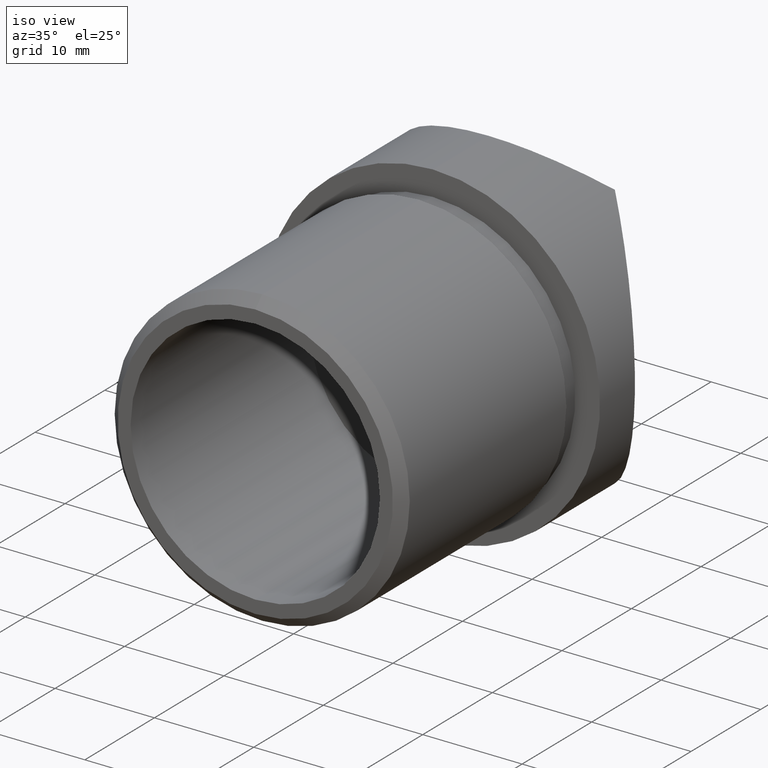
[diagram: clean part render]
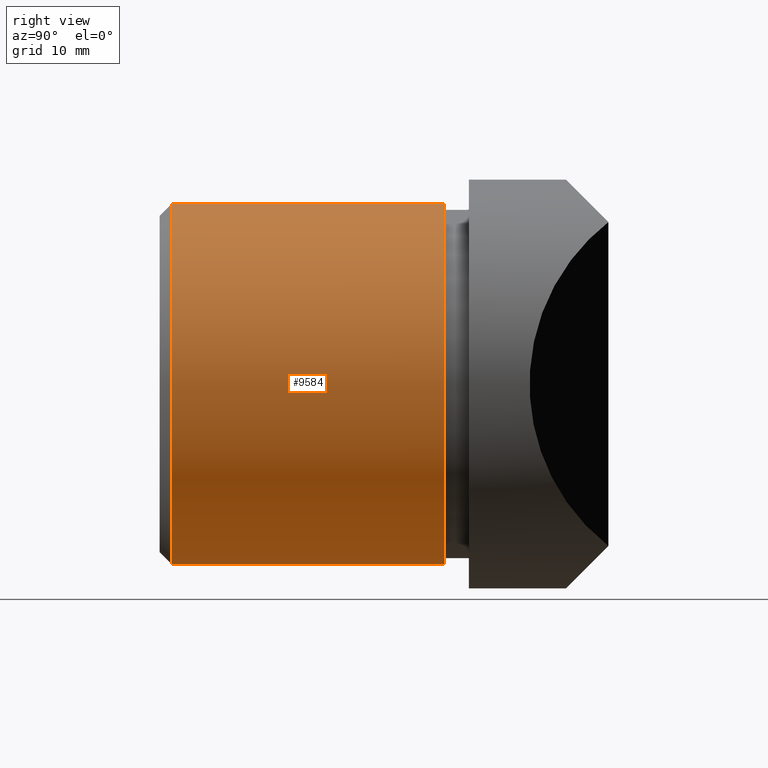
[diagram: tour spotlight — one face highlighted and labeled with its STEP entity id]
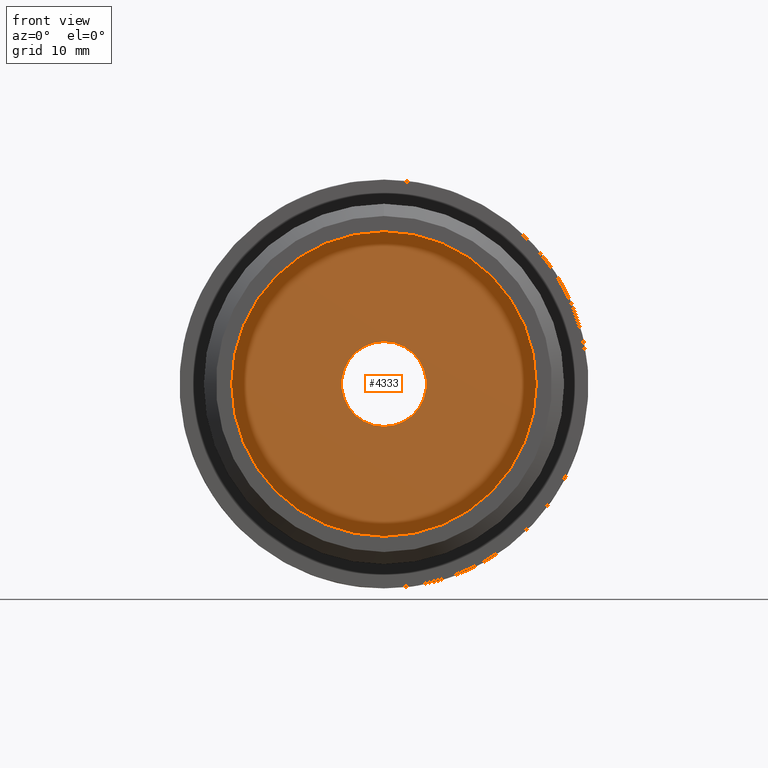
[diagram: tour spotlight — one face highlighted and labeled with its STEP entity id]
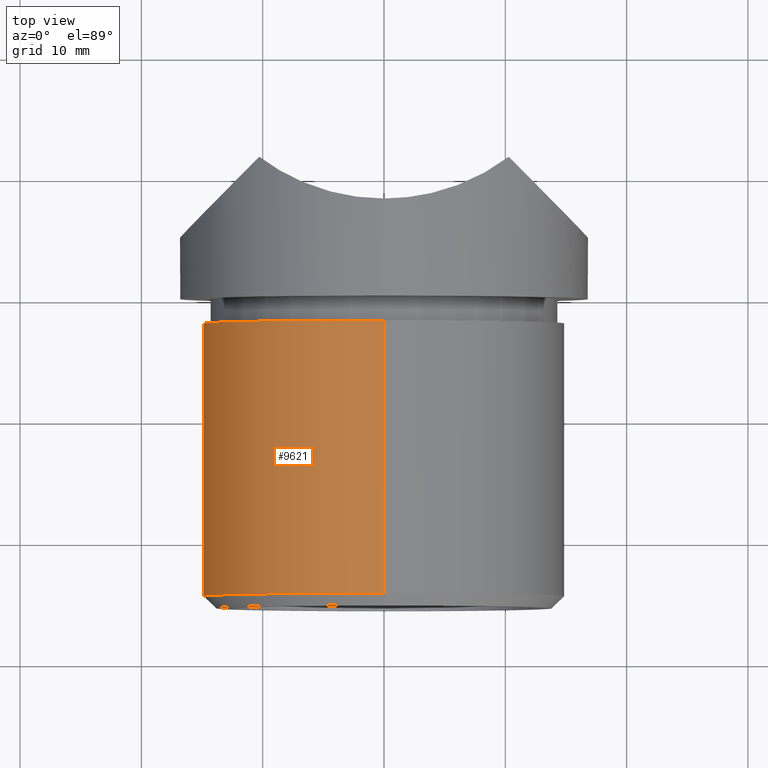
[diagram: tour spotlight — one face highlighted and labeled with its STEP entity id]
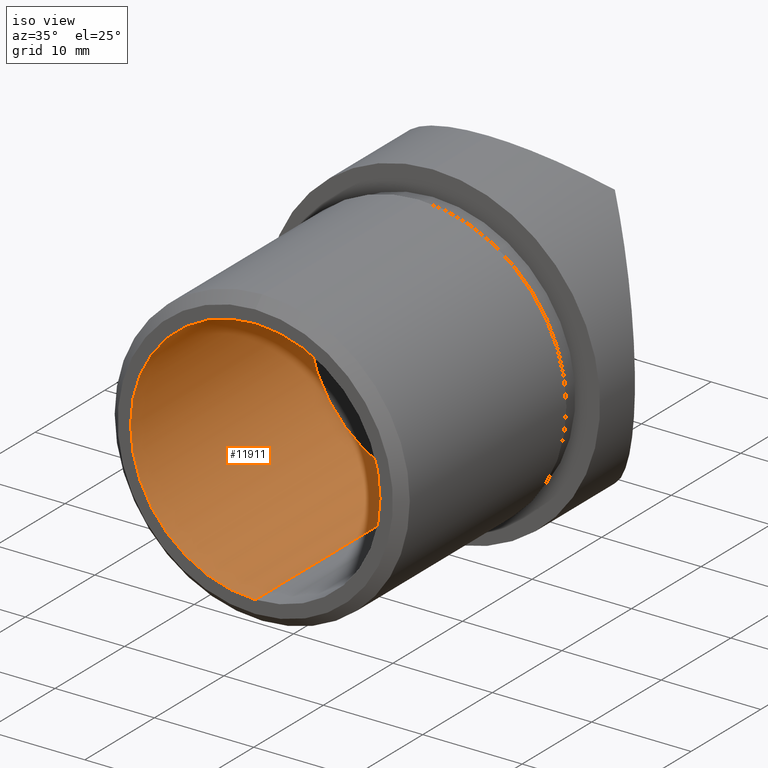
[diagram: tour spotlight — one face highlighted and labeled with its STEP entity id]
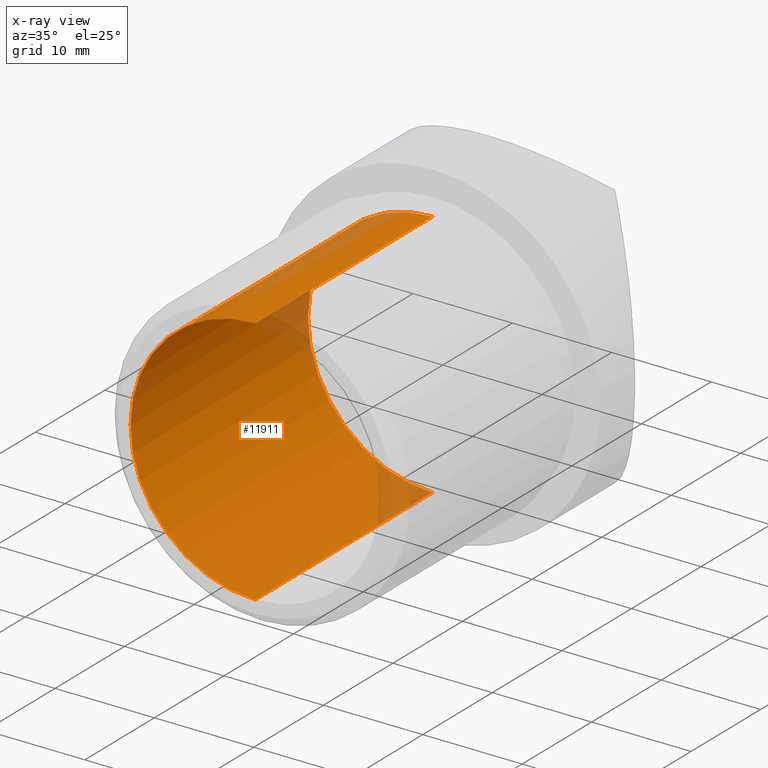
[diagram: x-ray of the same camera — body ghosted, this tour face saturated]
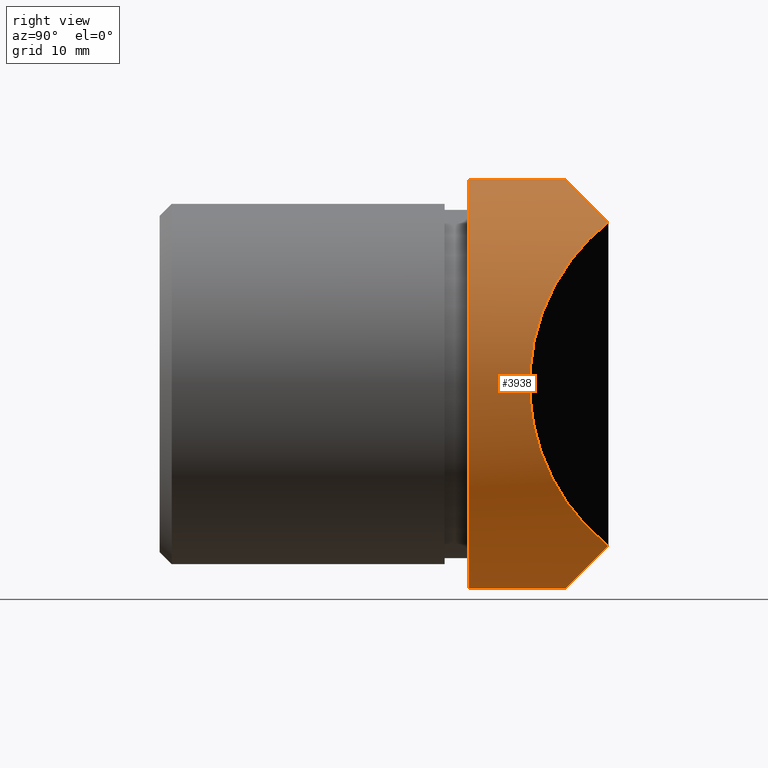
[diagram: tour spotlight — one face highlighted and labeled with its STEP entity id]
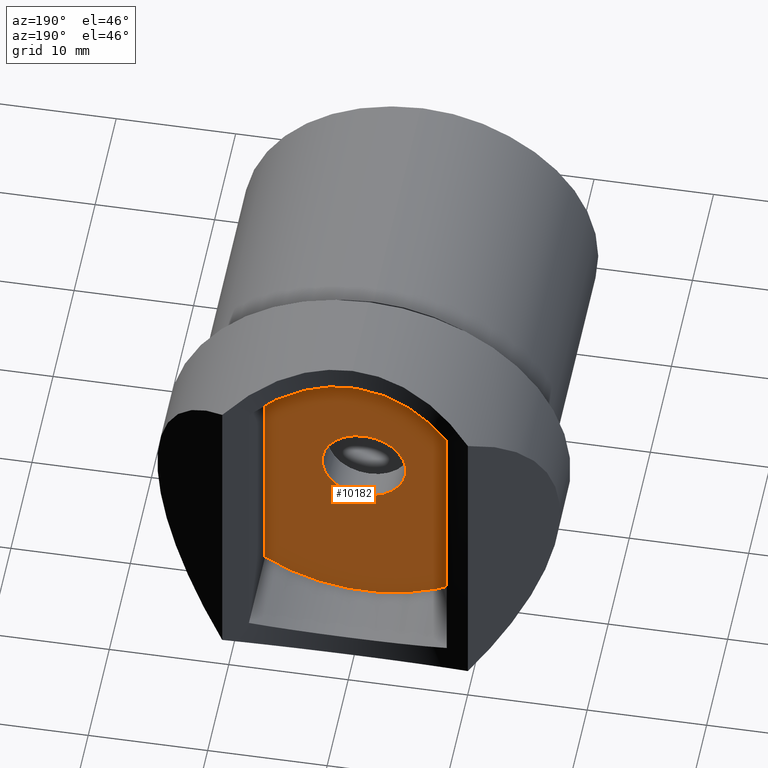
[diagram: tour spotlight — one face highlighted and labeled with its STEP entity id]
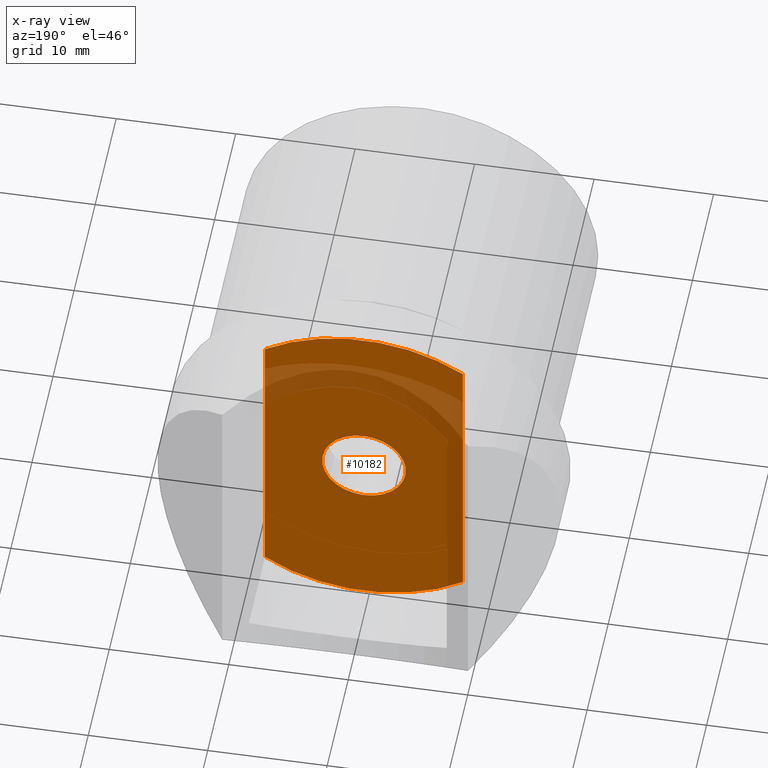
[diagram: x-ray of the same camera — body ghosted, this tour face saturated]
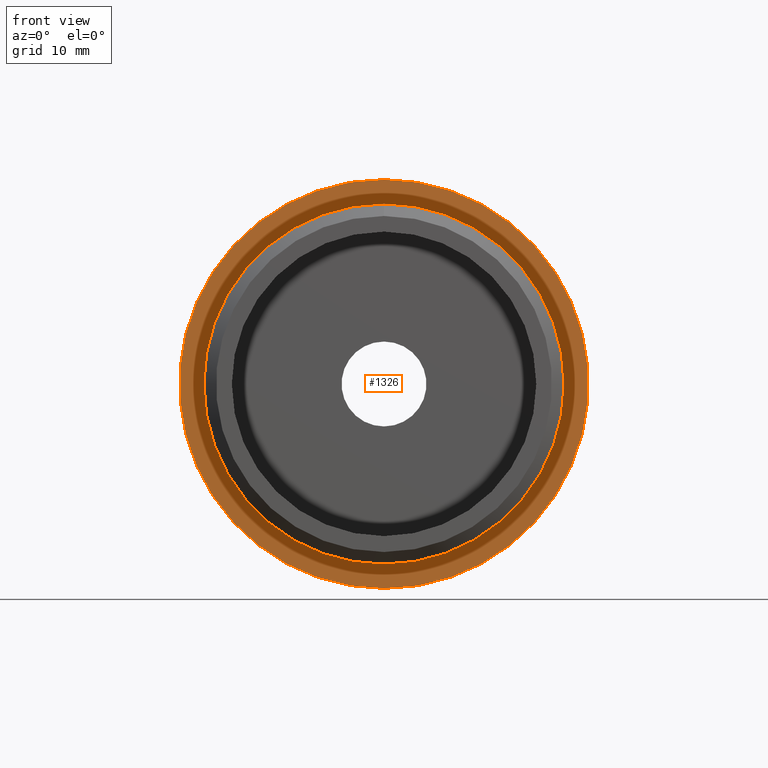
[diagram: tour spotlight — one face highlighted and labeled with its STEP entity id]
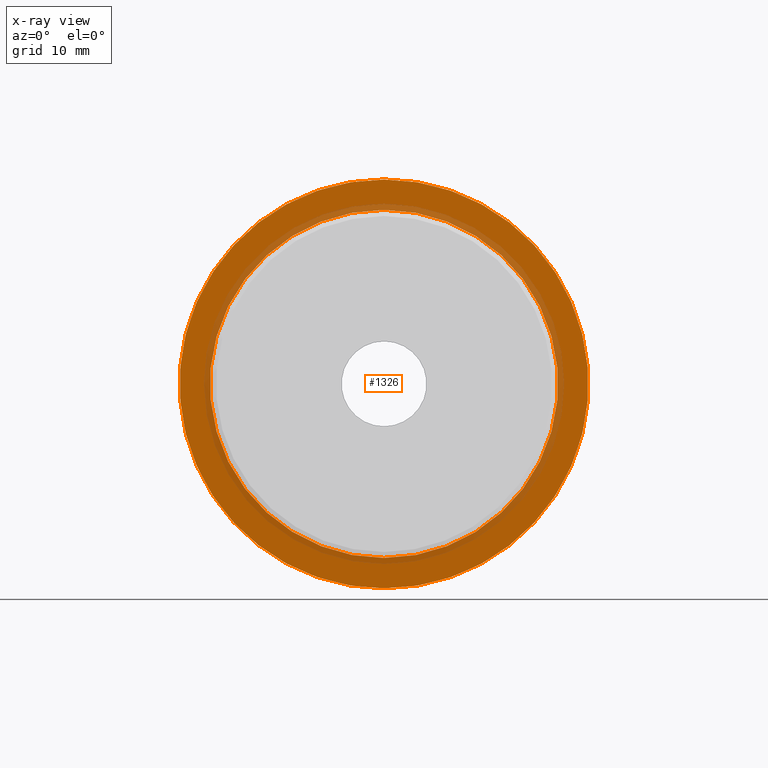
[diagram: x-ray of the same camera — body ghosted, this tour face saturated]
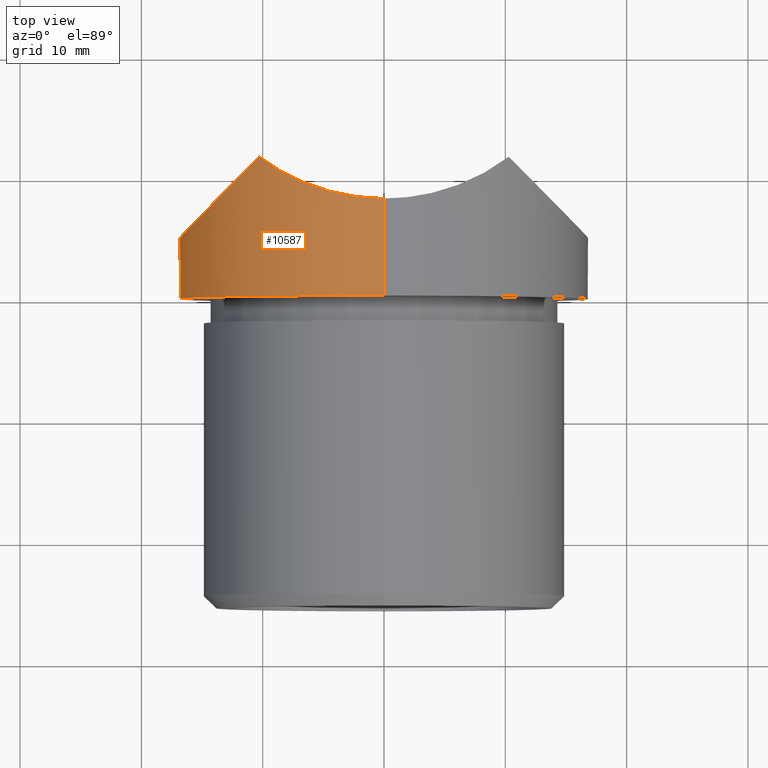
[diagram: tour spotlight — one face highlighted and labeled with its STEP entity id]
A machine part: a face-by-face anatomy tour. The part has 237 B-rep faces; the first image is the clean iso view, then the 8 largest visible faces are spotlighted one at a time (largest first), each with its STEP entity span.

Face 1 — right view, entity #9584. In plain terms, the highlighted cylindrical surface (partial cylindrical patch) has radius 14.85 mm, axis along (-0, 1, 0).
Definition (entity closure, byte-faithful):
#755 = LINE ( 'NONE', #2921, #3417 ) ;
#798 = CARTESIAN_POINT ( 'NONE',  ( 0.0000000000000000000, -25.50000000000000400, 14.85000000000000100 ) ) ;
#1133 = CARTESIAN_POINT ( 'NONE',  ( 1.818600496733819900E-015, -2.000000000000000000, -14.85000000000000100 ) ) ;
#1650 = FACE_OUTER_BOUND ( 'NONE', #2201, .T. ) ;
#1958 = VECTOR ( 'NONE', #10857, 1000.000000000000000 ) ;
#2189 = CARTESIAN_POINT ( 'NONE',  ( 0.0000000000000000000, -24.49999999999998600, 0.0000000000000000000 ) ) ;
#2201 = EDGE_LOOP ( 'NONE', ( #8445, #7369, #6015, #7601 ) ) ;
#2852 = AXIS2_PLACEMENT_3D ( 'NONE', #2189, #9168, #3183 ) ;
#2921 = CARTESIAN_POINT ( 'NONE',  ( 1.818600496733819900E-015, -25.50000000000000400, -14.85000000000000100 ) ) ;
#3183 = DIRECTION ( 'NONE',  ( 0.0000000000000000000, 0.0000000000000000000, -1.000000000000000000 ) ) ;
#3275 = CARTESIAN_POINT ( 'NONE',  ( 0.0000000000000000000, -2.000000000000000000, 0.0000000000000000000 ) ) ;
#3292 = DIRECTION ( 'NONE',  ( -0.0000000000000000000, 1.000000000000000000, 0.0000000000000000000 ) ) ;
#3417 = VECTOR ( 'NONE', #12917, 1000.000000000000000 ) ;
#3426 = EDGE_CURVE ( 'NONE', #8214, #5075, #755, .T. ) ;
#3995 = CYLINDRICAL_SURFACE ( 'NONE', #10809, 14.85000000000000100 ) ;
#4269 = DIRECTION ( 'NONE',  ( 0.0000000000000000000, 0.0000000000000000000, -1.000000000000000000 ) ) ;
#4647 = EDGE_CURVE ( 'NONE', #11382, #8214, #7434, .T. ) ;
#5075 = VERTEX_POINT ( 'NONE', #1133 ) ;
#5277 = DIRECTION ( 'NONE',  ( 0.0000000000000000000, 0.0000000000000000000, 1.000000000000000000 ) ) ;
#5883 = VERTEX_POINT ( 'NONE', #11936 ) ;
#6015 = ORIENTED_EDGE ( 'NONE', *, *, #8642, .T. ) ;
#7369 = ORIENTED_EDGE ( 'NONE', *, *, #3426, .T. ) ;
#7434 = CIRCLE ( 'NONE', #2852, 14.85000000000000100 ) ;
#7601 = ORIENTED_EDGE ( 'NONE', *, *, #9471, .F. ) ;
#8214 = VERTEX_POINT ( 'NONE', #11736 ) ;
#8445 = ORIENTED_EDGE ( 'NONE', *, *, #4647, .T. ) ;
#8642 = EDGE_CURVE ( 'NONE', #5075, #5883, #10435, .T. ) ;
#9168 = DIRECTION ( 'NONE',  ( 0.0000000000000000000, 1.000000000000000000, 0.0000000000000000000 ) ) ;
#9471 = EDGE_CURVE ( 'NONE', #11382, #5883, #12558, .T. ) ;
#9584 = ADVANCED_FACE ( 'NONE', ( #1650 ), #3995, .T. ) ;
#9905 = CARTESIAN_POINT ( 'NONE',  ( 0.0000000000000000000, -24.49999999999998600, 14.85000000000000100 ) ) ;
#10245 = DIRECTION ( 'NONE',  ( 0.0000000000000000000, -1.000000000000000000, 0.0000000000000000000 ) ) ;
#10435 = CIRCLE ( 'NONE', #11988, 14.85000000000000100 ) ;
#10809 = AXIS2_PLACEMENT_3D ( 'NONE', #11246, #3292, #5277 ) ;
#10857 = DIRECTION ( 'NONE',  ( -0.0000000000000000000, 1.000000000000000000, 0.0000000000000000000 ) ) ;
#11246 = CARTESIAN_POINT ( 'NONE',  ( 0.0000000000000000000, -25.50000000000000400, 0.0000000000000000000 ) ) ;
#11382 = VERTEX_POINT ( 'NONE', #9905 ) ;
#11736 = CARTESIAN_POINT ( 'NONE',  ( 1.818600496733819900E-015, -24.49999999999998600, -14.85000000000000100 ) ) ;
#11936 = CARTESIAN_POINT ( 'NONE',  ( 0.0000000000000000000, -2.000000000000000000, 14.85000000000000100 ) ) ;
#11988 = AXIS2_PLACEMENT_3D ( 'NONE', #3275, #10245, #4269 ) ;
#12558 = LINE ( 'NONE', #798, #1958 ) ;
#12917 = DIRECTION ( 'NONE',  ( -0.0000000000000000000, 1.000000000000000000, 0.0000000000000000000 ) ) ;

Face 2 — front view, entity #4333. In plain terms, the highlighted planar face has unit normal (0, 1, 0).
Definition (entity closure, byte-faithful):
#432 = EDGE_CURVE ( 'NONE', #1520, #3804, #10884, .T. ) ;
#592 = CIRCLE ( 'NONE', #7047, 3.500000000000000000 ) ;
#604 = DIRECTION ( 'NONE',  ( 0.0000000000000000000, -0.0000000000000000000, 1.000000000000000000 ) ) ;
#621 = DIRECTION ( 'NONE',  ( 0.0000000000000000000, 1.000000000000000000, 0.0000000000000000000 ) ) ;
#649 = PLANE ( 'NONE',  #12450 ) ;
#1150 = CARTESIAN_POINT ( 'NONE',  ( 0.0000000000000000000, 0.0000000000000000000, 0.0000000000000000000 ) ) ;
#1203 = VERTEX_POINT ( 'NONE', #6114 ) ;
#1520 = VERTEX_POINT ( 'NONE', #8709 ) ;
#1796 = EDGE_CURVE ( 'NONE', #11105, #1203, #8065, .T. ) ;
#2078 = DIRECTION ( 'NONE',  ( 0.0000000000000000000, -1.000000000000000000, 0.0000000000000000000 ) ) ;
#3512 = ORIENTED_EDGE ( 'NONE', *, *, #1796, .T. ) ;
#3804 = VERTEX_POINT ( 'NONE', #8096 ) ;
#3904 = DIRECTION ( 'NONE',  ( 0.0000000000000000000, 0.0000000000000000000, -1.000000000000000000 ) ) ;
#4333 = ADVANCED_FACE ( 'NONE', ( #9340, #4347 ), #649, .F. ) ;
#4347 = FACE_OUTER_BOUND ( 'NONE', #8064, .T. ) ;
#4369 = AXIS2_PLACEMENT_3D ( 'NONE', #11791, #5800, #12798 ) ;
#5225 = ORIENTED_EDGE ( 'NONE', *, *, #9092, .F. ) ;
#5800 = DIRECTION ( 'NONE',  ( 0.0000000000000000000, -1.000000000000000000, 0.0000000000000000000 ) ) ;
#6114 = CARTESIAN_POINT ( 'NONE',  ( 1.536931732929928400E-015, 0.0000000000000000000, -12.55000000000000100 ) ) ;
#6270 = EDGE_CURVE ( 'NONE', #1203, #11105, #10008, .T. ) ;
#7047 = AXIS2_PLACEMENT_3D ( 'NONE', #8046, #2078, #9064 ) ;
#7336 = DIRECTION ( 'NONE',  ( 0.0000000000000000000, -1.000000000000000000, 0.0000000000000000000 ) ) ;
#7505 = EDGE_LOOP ( 'NONE', ( #5225, #10526 ) ) ;
#7819 = DIRECTION ( 'NONE',  ( 0.0000000000000000000, 0.0000000000000000000, -1.000000000000000000 ) ) ;
#8046 = CARTESIAN_POINT ( 'NONE',  ( 0.0000000000000000000, 0.0000000000000000000, 0.0000000000000000000 ) ) ;
#8064 = EDGE_LOOP ( 'NONE', ( #3512, #11783 ) ) ;
#8065 = CIRCLE ( 'NONE', #10945, 12.55000000000000100 ) ;
#8096 = CARTESIAN_POINT ( 'NONE',  ( 0.0000000000000000000, 0.0000000000000000000, -3.500000000000000000 ) ) ;
#8115 = AXIS2_PLACEMENT_3D ( 'NONE', #12112, #7336, #7819 ) ;
#8709 = CARTESIAN_POINT ( 'NONE',  ( 4.286263797015736600E-016, 0.0000000000000000000, 3.500000000000000000 ) ) ;
#9064 = DIRECTION ( 'NONE',  ( 0.0000000000000000000, 0.0000000000000000000, -1.000000000000000000 ) ) ;
#9092 = EDGE_CURVE ( 'NONE', #3804, #1520, #592, .T. ) ;
#9340 = FACE_BOUND ( 'NONE', #7505, .T. ) ;
#10008 = CIRCLE ( 'NONE', #4369, 12.55000000000000100 ) ;
#10526 = ORIENTED_EDGE ( 'NONE', *, *, #432, .F. ) ;
#10869 = CARTESIAN_POINT ( 'NONE',  ( 0.0000000000000000000, 0.0000000000000000000, 0.0000000000000000000 ) ) ;
#10884 = CIRCLE ( 'NONE', #8115, 3.500000000000000000 ) ;
#10945 = AXIS2_PLACEMENT_3D ( 'NONE', #10869, #12693, #3904 ) ;
#11041 = CARTESIAN_POINT ( 'NONE',  ( 0.0000000000000000000, 0.0000000000000000000, 12.55000000000000100 ) ) ;
#11105 = VERTEX_POINT ( 'NONE', #11041 ) ;
#11783 = ORIENTED_EDGE ( 'NONE', *, *, #6270, .T. ) ;
#11791 = CARTESIAN_POINT ( 'NONE',  ( 0.0000000000000000000, 0.0000000000000000000, 0.0000000000000000000 ) ) ;
#12112 = CARTESIAN_POINT ( 'NONE',  ( 0.0000000000000000000, 0.0000000000000000000, 0.0000000000000000000 ) ) ;
#12450 = AXIS2_PLACEMENT_3D ( 'NONE', #1150, #621, #604 ) ;
#12693 = DIRECTION ( 'NONE',  ( 0.0000000000000000000, -1.000000000000000000, 0.0000000000000000000 ) ) ;
#12798 = DIRECTION ( 'NONE',  ( 0.0000000000000000000, 0.0000000000000000000, -1.000000000000000000 ) ) ;

Face 3 — top view, entity #9621. In plain terms, the highlighted cylindrical surface (partial cylindrical patch) has radius 14.85 mm, axis along (-0, 1, 0).
Definition (entity closure, byte-faithful):
#605 = DIRECTION ( 'NONE',  ( 0.0000000000000000000, 1.000000000000000000, 0.0000000000000000000 ) ) ;
#719 = CIRCLE ( 'NONE', #4599, 14.85000000000000100 ) ;
#755 = LINE ( 'NONE', #2921, #3417 ) ;
#798 = CARTESIAN_POINT ( 'NONE',  ( 0.0000000000000000000, -25.50000000000000400, 14.85000000000000100 ) ) ;
#1133 = CARTESIAN_POINT ( 'NONE',  ( 1.818600496733819900E-015, -2.000000000000000000, -14.85000000000000100 ) ) ;
#1254 = ORIENTED_EDGE ( 'NONE', *, *, #5507, .T. ) ;
#1559 = EDGE_CURVE ( 'NONE', #8214, #11382, #8678, .T. ) ;
#1958 = VECTOR ( 'NONE', #10857, 1000.000000000000000 ) ;
#2347 = ORIENTED_EDGE ( 'NONE', *, *, #3426, .F. ) ;
#2921 = CARTESIAN_POINT ( 'NONE',  ( 1.818600496733819900E-015, -25.50000000000000400, -14.85000000000000100 ) ) ;
#3239 = EDGE_LOOP ( 'NONE', ( #2347, #7955, #5583, #1254 ) ) ;
#3414 = DIRECTION ( 'NONE',  ( 0.0000000000000000000, 0.0000000000000000000, 1.000000000000000000 ) ) ;
#3417 = VECTOR ( 'NONE', #12917, 1000.000000000000000 ) ;
#3426 = EDGE_CURVE ( 'NONE', #8214, #5075, #755, .T. ) ;
#4374 = DIRECTION ( 'NONE',  ( 0.0000000000000000000, -1.000000000000000000, 0.0000000000000000000 ) ) ;
#4415 = DIRECTION ( 'NONE',  ( -0.0000000000000000000, 1.000000000000000000, 0.0000000000000000000 ) ) ;
#4599 = AXIS2_PLACEMENT_3D ( 'NONE', #10341, #4374, #11329 ) ;
#5075 = VERTEX_POINT ( 'NONE', #1133 ) ;
#5507 = EDGE_CURVE ( 'NONE', #5883, #5075, #719, .T. ) ;
#5510 = DIRECTION ( 'NONE',  ( 0.0000000000000000000, 0.0000000000000000000, -1.000000000000000000 ) ) ;
#5583 = ORIENTED_EDGE ( 'NONE', *, *, #9471, .T. ) ;
#5586 = AXIS2_PLACEMENT_3D ( 'NONE', #6559, #605, #5510 ) ;
#5883 = VERTEX_POINT ( 'NONE', #11936 ) ;
#6559 = CARTESIAN_POINT ( 'NONE',  ( 0.0000000000000000000, -24.49999999999998600, 0.0000000000000000000 ) ) ;
#7955 = ORIENTED_EDGE ( 'NONE', *, *, #1559, .T. ) ;
#8214 = VERTEX_POINT ( 'NONE', #11736 ) ;
#8678 = CIRCLE ( 'NONE', #5586, 14.85000000000000100 ) ;
#8988 = CYLINDRICAL_SURFACE ( 'NONE', #12819, 14.85000000000000100 ) ;
#9308 = FACE_OUTER_BOUND ( 'NONE', #3239, .T. ) ;
#9471 = EDGE_CURVE ( 'NONE', #11382, #5883, #12558, .T. ) ;
#9621 = ADVANCED_FACE ( 'NONE', ( #9308 ), #8988, .T. ) ;
#9905 = CARTESIAN_POINT ( 'NONE',  ( 0.0000000000000000000, -24.49999999999998600, 14.85000000000000100 ) ) ;
#10341 = CARTESIAN_POINT ( 'NONE',  ( 0.0000000000000000000, -2.000000000000000000, 0.0000000000000000000 ) ) ;
#10383 = CARTESIAN_POINT ( 'NONE',  ( 0.0000000000000000000, -25.50000000000000400, 0.0000000000000000000 ) ) ;
#10857 = DIRECTION ( 'NONE',  ( -0.0000000000000000000, 1.000000000000000000, 0.0000000000000000000 ) ) ;
#11329 = DIRECTION ( 'NONE',  ( 0.0000000000000000000, 0.0000000000000000000, -1.000000000000000000 ) ) ;
#11382 = VERTEX_POINT ( 'NONE', #9905 ) ;
#11736 = CARTESIAN_POINT ( 'NONE',  ( 1.818600496733819900E-015, -24.49999999999998600, -14.85000000000000100 ) ) ;
#11936 = CARTESIAN_POINT ( 'NONE',  ( 0.0000000000000000000, -2.000000000000000000, 14.85000000000000100 ) ) ;
#12558 = LINE ( 'NONE', #798, #1958 ) ;
#12819 = AXIS2_PLACEMENT_3D ( 'NONE', #10383, #4415, #3414 ) ;
#12917 = DIRECTION ( 'NONE',  ( -0.0000000000000000000, 1.000000000000000000, 0.0000000000000000000 ) ) ;

Face 4 — iso view, entity #11911. An x-ray twin of the same camera follows (body ghosted, this face saturated) — the face is partly hidden behind the body. In plain terms, the highlighted cylindrical surface (partial cylindrical patch) has radius 12.55 mm, axis along (-0, 1, -0).
Definition (entity closure, byte-faithful):
#613 = DIRECTION ( 'NONE',  ( 0.0000000000000000000, -1.000000000000000000, 0.0000000000000000000 ) ) ;
#1010 = ORIENTED_EDGE ( 'NONE', *, *, #1679, .T. ) ;
#1016 = DIRECTION ( 'NONE',  ( 0.0000000000000000000, 0.0000000000000000000, 1.000000000000000000 ) ) ;
#1050 = LINE ( 'NONE', #4892, #8377 ) ;
#1203 = VERTEX_POINT ( 'NONE', #6114 ) ;
#1679 = EDGE_CURVE ( 'NONE', #12928, #1203, #1050, .T. ) ;
#1760 = CARTESIAN_POINT ( 'NONE',  ( 0.0000000000000000000, -2.000000000000000000, 12.55000000000000100 ) ) ;
#1796 = EDGE_CURVE ( 'NONE', #11105, #1203, #8065, .T. ) ;
#2725 = CYLINDRICAL_SURFACE ( 'NONE', #4305, 12.55000000000000100 ) ;
#2823 = DIRECTION ( 'NONE',  ( -0.0000000000000000000, 1.000000000000000000, -0.0000000000000000000 ) ) ;
#3024 = FACE_OUTER_BOUND ( 'NONE', #12245, .T. ) ;
#3652 = VECTOR ( 'NONE', #6746, 1000.000000000000000 ) ;
#3904 = DIRECTION ( 'NONE',  ( 0.0000000000000000000, 0.0000000000000000000, -1.000000000000000000 ) ) ;
#4305 = AXIS2_PLACEMENT_3D ( 'NONE', #5955, #6975, #1016 ) ;
#4831 = CIRCLE ( 'NONE', #12475, 12.55000000000000100 ) ;
#4892 = CARTESIAN_POINT ( 'NONE',  ( 1.536931732929928400E-015, -2.000000000000000000, -12.55000000000000100 ) ) ;
#4896 = ORIENTED_EDGE ( 'NONE', *, *, #7908, .T. ) ;
#5647 = CARTESIAN_POINT ( 'NONE',  ( 1.536931732929928400E-015, -25.50000000000000400, -12.55000000000000100 ) ) ;
#5657 = VERTEX_POINT ( 'NONE', #9645 ) ;
#5830 = ORIENTED_EDGE ( 'NONE', *, *, #1796, .F. ) ;
#5955 = CARTESIAN_POINT ( 'NONE',  ( 0.0000000000000000000, -2.000000000000000000, 0.0000000000000000000 ) ) ;
#6114 = CARTESIAN_POINT ( 'NONE',  ( 1.536931732929928400E-015, 0.0000000000000000000, -12.55000000000000100 ) ) ;
#6566 = CARTESIAN_POINT ( 'NONE',  ( 0.0000000000000000000, -25.50000000000000400, 0.0000000000000000000 ) ) ;
#6746 = DIRECTION ( 'NONE',  ( -0.0000000000000000000, 1.000000000000000000, -0.0000000000000000000 ) ) ;
#6975 = DIRECTION ( 'NONE',  ( -0.0000000000000000000, 1.000000000000000000, -0.0000000000000000000 ) ) ;
#7569 = DIRECTION ( 'NONE',  ( 0.0000000000000000000, 0.0000000000000000000, -1.000000000000000000 ) ) ;
#7908 = EDGE_CURVE ( 'NONE', #5657, #12928, #4831, .T. ) ;
#8065 = CIRCLE ( 'NONE', #10945, 12.55000000000000100 ) ;
#8377 = VECTOR ( 'NONE', #2823, 1000.000000000000000 ) ;
#8673 = ORIENTED_EDGE ( 'NONE', *, *, #11796, .F. ) ;
#9645 = CARTESIAN_POINT ( 'NONE',  ( 0.0000000000000000000, -25.50000000000000400, 12.55000000000000100 ) ) ;
#10869 = CARTESIAN_POINT ( 'NONE',  ( 0.0000000000000000000, 0.0000000000000000000, 0.0000000000000000000 ) ) ;
#10945 = AXIS2_PLACEMENT_3D ( 'NONE', #10869, #12693, #3904 ) ;
#11041 = CARTESIAN_POINT ( 'NONE',  ( 0.0000000000000000000, 0.0000000000000000000, 12.55000000000000100 ) ) ;
#11105 = VERTEX_POINT ( 'NONE', #11041 ) ;
#11289 = LINE ( 'NONE', #1760, #3652 ) ;
#11796 = EDGE_CURVE ( 'NONE', #5657, #11105, #11289, .T. ) ;
#11911 = ADVANCED_FACE ( 'NONE', ( #3024 ), #2725, .F. ) ;
#12245 = EDGE_LOOP ( 'NONE', ( #4896, #1010, #5830, #8673 ) ) ;
#12475 = AXIS2_PLACEMENT_3D ( 'NONE', #6566, #613, #7569 ) ;
#12693 = DIRECTION ( 'NONE',  ( 0.0000000000000000000, -1.000000000000000000, 0.0000000000000000000 ) ) ;
#12928 = VERTEX_POINT ( 'NONE', #5647 ) ;

Face 5 — right view, entity #3938. In plain terms, the highlighted cylindrical surface (partial cylindrical patch) has radius 16.85 mm, axis along (-0, -1, -0).
Definition (entity closure, byte-faithful):
#870 = AXIS2_PLACEMENT_3D ( 'NONE', #9777, #3796, #10768 ) ;
#1008 = CARTESIAN_POINT ( 'NONE',  ( 19.80858279631081900, 2.072471288782573600, -6.012693583808093000 ) ) ;
#1324 = LINE ( 'NONE', #9783, #10972 ) ;
#1524 = LINE ( 'NONE', #12463, #2473 ) ;
#1607 = ORIENTED_EDGE ( 'NONE', *, *, #7946, .T. ) ;
#1904 = VERTEX_POINT ( 'NONE', #4695 ) ;
#2473 = VECTOR ( 'NONE', #6467, 1000.000000000000000 ) ;
#2675 = CARTESIAN_POINT ( 'NONE',  ( 0.0000000000000000000, 0.0000000000000000000, -16.85000000000000100 ) ) ;
#2709 = CARTESIAN_POINT ( 'NONE',  ( 2.063529856563290200E-015, 8.000000000000000000, 16.85000000000000100 ) ) ;
#3306 = VERTEX_POINT ( 'NONE', #10428 ) ;
#3394 = VERTEX_POINT ( 'NONE', #2675 ) ;
#3525 = EDGE_CURVE ( 'NONE', #11682, #10932, #4107, .T. ) ;
#3547 = CARTESIAN_POINT ( 'NONE',  ( 10.28105052997990000, 11.50000000000000000, 13.35000000000000100 ) ) ;
#3556 = FACE_OUTER_BOUND ( 'NONE', #4150, .T. ) ;
#3721 = CARTESIAN_POINT ( 'NONE',  ( 10.28105052997990000, 11.50000000000000000, -13.35000000000000100 ) ) ;
#3758 = CARTESIAN_POINT ( 'NONE',  ( 7.307074478862047900, 9.209693029476204300, -15.64030697052379700 ) ) ;
#3796 = DIRECTION ( 'NONE',  ( 0.0000000000000000000, 1.000000000000000000, 0.0000000000000000000 ) ) ;
#3830 = CARTESIAN_POINT ( 'NONE',  ( 0.0000000000000000000, 8.000000000000000000, -16.85000000000000100 ) ) ;
#3843 = CARTESIAN_POINT ( 'NONE',  ( 3.753670146916537200, 8.000000000000003600, -16.84999999999999800 ) ) ;
#3938 = ADVANCED_FACE ( 'NONE', ( #3556 ), #11182, .T. ) ;
#4068 = CARTESIAN_POINT ( 'NONE',  ( 10.28105052997990000, 11.50000000000000000, -13.35000000000000100 ) ) ;
#4107 =( BOUNDED_CURVE ( )  B_SPLINE_CURVE ( 3, ( #11148, #11164, #11178, #11132 ),
 .UNSPECIFIED., .F., .T. ) 
 B_SPLINE_CURVE_WITH_KNOTS ( ( 4, 4 ),
 ( 5.626933679371407300, 6.283185307179586200 ),
 .UNSPECIFIED. ) 
 CURVE ( )  GEOMETRIC_REPRESENTATION_ITEM ( )  RATIONAL_B_SPLINE_CURVE ( ( 1.000000000000000000, 0.9644319990599890000, 0.9644319990599890000, 1.000000000000000000 ) ) 
 REPRESENTATION_ITEM ( '' )  );
#4150 = EDGE_LOOP ( 'NONE', ( #6459, #5933, #1607, #7739, #8424, #6657 ) ) ;
#4155 = EDGE_CURVE ( 'NONE', #9429, #1904, #5294, .T. ) ;
#4695 = CARTESIAN_POINT ( 'NONE',  ( 10.28105052997990000, 11.50000000000000000, -13.35000000000000100 ) ) ;
#4807 = DIRECTION ( 'NONE',  ( -0.0000000000000000000, -1.000000000000000000, -0.0000000000000000000 ) ) ;
#4859 = EDGE_CURVE ( 'NONE', #9429, #3394, #1524, .T. ) ;
#5041 = CARTESIAN_POINT ( 'NONE',  ( 19.80858279631082300, 2.072471288782570000, 6.012693583808089500 ) ) ;
#5090 = AXIS2_PLACEMENT_3D ( 'NONE', #7202, #6448, #7168 ) ;
#5294 =( BOUNDED_CURVE ( )  B_SPLINE_CURVE ( 3, ( #3830, #3843, #3758, #3721 ),
 .UNSPECIFIED., .F., .F. ) 
 B_SPLINE_CURVE_WITH_KNOTS ( ( 4, 4 ),
 ( 0.0000000000000000000, 0.6562516278081792500 ),
 .UNSPECIFIED. ) 
 CURVE ( )  GEOMETRIC_REPRESENTATION_ITEM ( )  RATIONAL_B_SPLINE_CURVE ( ( 1.000000000000000000, 0.9644319990599890000, 0.9644319990599890000, 1.000000000000000000 ) ) 
 REPRESENTATION_ITEM ( '' )  );
#5933 = ORIENTED_EDGE ( 'NONE', *, *, #11833, .T. ) ;
#6448 = DIRECTION ( 'NONE',  ( -0.0000000000000000000, -1.000000000000000000, -0.0000000000000000000 ) ) ;
#6459 = ORIENTED_EDGE ( 'NONE', *, *, #3525, .T. ) ;
#6467 = DIRECTION ( 'NONE',  ( -0.0000000000000000000, -1.000000000000000000, -0.0000000000000000000 ) ) ;
#6657 = ORIENTED_EDGE ( 'NONE', *, *, #8585, .T. ) ;
#7168 = DIRECTION ( 'NONE',  ( 0.0000000000000000000, 0.0000000000000000000, -1.000000000000000000 ) ) ;
#7202 = CARTESIAN_POINT ( 'NONE',  ( 0.0000000000000000000, 11.50000000000000000, 0.0000000000000000000 ) ) ;
#7739 = ORIENTED_EDGE ( 'NONE', *, *, #4859, .F. ) ;
#7946 = EDGE_CURVE ( 'NONE', #3306, #3394, #9514, .T. ) ;
#8424 = ORIENTED_EDGE ( 'NONE', *, *, #4155, .T. ) ;
#8585 = EDGE_CURVE ( 'NONE', #1904, #11682, #11373, .T. ) ;
#8683 = CARTESIAN_POINT ( 'NONE',  ( 0.0000000000000000000, 8.000000000000000000, -16.85000000000000100 ) ) ;
#9429 = VERTEX_POINT ( 'NONE', #8683 ) ;
#9514 = CIRCLE ( 'NONE', #870, 16.85000000000000100 ) ;
#9777 = CARTESIAN_POINT ( 'NONE',  ( 0.0000000000000000000, 0.0000000000000000000, 0.0000000000000000000 ) ) ;
#9783 = CARTESIAN_POINT ( 'NONE',  ( 2.063529856563290200E-015, 11.50000000000000000, 16.85000000000000100 ) ) ;
#10428 = CARTESIAN_POINT ( 'NONE',  ( 2.063529856563290200E-015, 0.0000000000000000000, 16.85000000000000100 ) ) ;
#10768 = DIRECTION ( 'NONE',  ( 0.0000000000000000000, 0.0000000000000000000, 1.000000000000000000 ) ) ;
#10932 = VERTEX_POINT ( 'NONE', #2709 ) ;
#10972 = VECTOR ( 'NONE', #4807, 1000.000000000000000 ) ;
#11132 = CARTESIAN_POINT ( 'NONE',  ( 2.063529856563290200E-015, 8.000000000000000000, 16.85000000000000100 ) ) ;
#11148 = CARTESIAN_POINT ( 'NONE',  ( 10.28105052997990000, 11.50000000000000000, 13.35000000000000100 ) ) ;
#11164 = CARTESIAN_POINT ( 'NONE',  ( 7.307074478862047900, 9.209693029476204300, 15.64030697052379700 ) ) ;
#11178 = CARTESIAN_POINT ( 'NONE',  ( 3.753670146916535400, 8.000000000000003600, 16.84999999999999800 ) ) ;
#11182 = CYLINDRICAL_SURFACE ( 'NONE', #5090, 16.85000000000000100 ) ;
#11373 =( BOUNDED_CURVE ( )  B_SPLINE_CURVE ( 3, ( #4068, #1008, #5041, #12031 ),
 .UNSPECIFIED., .F., .F. ) 
 B_SPLINE_CURVE_WITH_KNOTS ( ( 4, 4 ),
 ( 5.368640608192868600, 7.197730006166303900 ),
 .UNSPECIFIED. ) 
 CURVE ( )  GEOMETRIC_REPRESENTATION_ITEM ( )  RATIONAL_B_SPLINE_CURVE ( ( 1.000000000000000000, 0.7401009111762570900, 0.7401009111762570900, 1.000000000000000000 ) ) 
 REPRESENTATION_ITEM ( '' )  );
#11682 = VERTEX_POINT ( 'NONE', #3547 ) ;
#11833 = EDGE_CURVE ( 'NONE', #10932, #3306, #1324, .T. ) ;
#12031 = CARTESIAN_POINT ( 'NONE',  ( 10.28105052997990000, 11.50000000000000000, 13.35000000000000100 ) ) ;
#12463 = CARTESIAN_POINT ( 'NONE',  ( 0.0000000000000000000, 11.50000000000000000, -16.85000000000000100 ) ) ;

Face 6 — auxiliary view, entity #10182. An x-ray twin of the same camera follows (body ghosted, this face saturated) — the face is partly hidden behind the body. In plain terms, the highlighted planar face has unit normal (0, 1, 0).
Definition (entity closure, byte-faithful):
#219 = CARTESIAN_POINT ( 'NONE',  ( 0.0000000000000000000, 2.500000000000000000, 0.0000000000000000000 ) ) ;
#388 = VERTEX_POINT ( 'NONE', #2907 ) ;
#474 = DIRECTION ( 'NONE',  ( 0.0000000000000000000, 0.0000000000000000000, 1.000000000000000000 ) ) ;
#578 = ORIENTED_EDGE ( 'NONE', *, *, #8172, .F. ) ;
#858 = FACE_BOUND ( 'NONE', #12830, .T. ) ;
#911 = ORIENTED_EDGE ( 'NONE', *, *, #2652, .F. ) ;
#979 = VERTEX_POINT ( 'NONE', #10142 ) ;
#988 = DIRECTION ( 'NONE',  ( -0.0000000000000000000, -1.000000000000000000, -0.0000000000000000000 ) ) ;
#1249 = DIRECTION ( 'NONE',  ( 0.0000000000000000000, 1.000000000000000000, 0.0000000000000000000 ) ) ;
#1320 = DIRECTION ( 'NONE',  ( 1.407293288778921200E-016, 0.0000000000000000000, 1.000000000000000000 ) ) ;
#1498 = CARTESIAN_POINT ( 'NONE',  ( -8.281050529979912900, 2.500000000000002200, -12.32666630196176300 ) ) ;
#1815 = CARTESIAN_POINT ( 'NONE',  ( -7.504705842988906800E-015, 2.500000000000002200, 0.0000000000000000000 ) ) ;
#2510 = CARTESIAN_POINT ( 'NONE',  ( 0.0000000000000000000, 2.500000000000000000, -3.500000000000000000 ) ) ;
#2567 = LINE ( 'NONE', #12250, #4890 ) ;
#2652 = EDGE_CURVE ( 'NONE', #4477, #388, #7464, .T. ) ;
#2907 = CARTESIAN_POINT ( 'NONE',  ( -8.281050529979912900, 2.500000000000002200, 12.32666630196176300 ) ) ;
#3637 = CARTESIAN_POINT ( 'NONE',  ( -8.281050529979912900, 2.500000000000002200, -12.32666630196176300 ) ) ;
#3971 = DIRECTION ( 'NONE',  ( 0.0000000000000000000, -1.000000000000000000, 0.0000000000000000000 ) ) ;
#4188 = CARTESIAN_POINT ( 'NONE',  ( 0.0000000000000000000, 2.500000000000000000, 0.0000000000000000000 ) ) ;
#4477 = VERTEX_POINT ( 'NONE', #5742 ) ;
#4638 = DIRECTION ( 'NONE',  ( 0.0000000000000000000, 0.0000000000000000000, -1.000000000000000000 ) ) ;
#4890 = VECTOR ( 'NONE', #1320, 1000.000000000000000 ) ;
#5174 = DIRECTION ( 'NONE',  ( 0.0000000000000000000, 0.0000000000000000000, -1.000000000000000000 ) ) ;
#5623 = AXIS2_PLACEMENT_3D ( 'NONE', #4188, #11138, #5174 ) ;
#5742 = CARTESIAN_POINT ( 'NONE',  ( 8.281050529979891600, 2.500000000000002200, 12.32666630196176900 ) ) ;
#6113 = VERTEX_POINT ( 'NONE', #9496 ) ;
#6432 = DIRECTION ( 'NONE',  ( -0.0000000000000000000, -1.000000000000000000, -0.0000000000000000000 ) ) ;
#6599 = CIRCLE ( 'NONE', #5623, 3.500000000000000000 ) ;
#6607 = AXIS2_PLACEMENT_3D ( 'NONE', #9947, #3971, #10933 ) ;
#6915 = CIRCLE ( 'NONE', #11899, 14.85000000000000500 ) ;
#6973 = ORIENTED_EDGE ( 'NONE', *, *, #8526, .T. ) ;
#7464 = CIRCLE ( 'NONE', #8940, 14.85000000000000300 ) ;
#7857 = VERTEX_POINT ( 'NONE', #2510 ) ;
#8172 = EDGE_CURVE ( 'NONE', #388, #10409, #10905, .T. ) ;
#8212 = DIRECTION ( 'NONE',  ( 0.0000000000000000000, -0.0000000000000000000, 1.000000000000000000 ) ) ;
#8265 = VECTOR ( 'NONE', #4638, 1000.000000000000000 ) ;
#8409 = CIRCLE ( 'NONE', #6607, 3.500000000000000000 ) ;
#8526 = EDGE_CURVE ( 'NONE', #7857, #979, #8409, .T. ) ;
#8851 = ORIENTED_EDGE ( 'NONE', *, *, #11503, .F. ) ;
#8864 = EDGE_LOOP ( 'NONE', ( #10567, #578, #911, #8851 ) ) ;
#8940 = AXIS2_PLACEMENT_3D ( 'NONE', #1815, #988, #12934 ) ;
#9496 = CARTESIAN_POINT ( 'NONE',  ( 8.281050529979893300, 2.500000000000002200, -12.32666630196176200 ) ) ;
#9947 = CARTESIAN_POINT ( 'NONE',  ( 0.0000000000000000000, 2.500000000000000000, 0.0000000000000000000 ) ) ;
#10142 = CARTESIAN_POINT ( 'NONE',  ( 4.286263797015736600E-016, 2.500000000000000000, 3.500000000000000000 ) ) ;
#10182 = ADVANCED_FACE ( 'NONE', ( #858, #11459 ), #12176, .T. ) ;
#10409 = VERTEX_POINT ( 'NONE', #1498 ) ;
#10567 = ORIENTED_EDGE ( 'NONE', *, *, #11570, .F. ) ;
#10568 = AXIS2_PLACEMENT_3D ( 'NONE', #219, #1249, #8212 ) ;
#10699 = EDGE_CURVE ( 'NONE', #979, #7857, #6599, .T. ) ;
#10905 = LINE ( 'NONE', #3637, #8265 ) ;
#10933 = DIRECTION ( 'NONE',  ( 0.0000000000000000000, 0.0000000000000000000, -1.000000000000000000 ) ) ;
#11138 = DIRECTION ( 'NONE',  ( 0.0000000000000000000, -1.000000000000000000, 0.0000000000000000000 ) ) ;
#11459 = FACE_OUTER_BOUND ( 'NONE', #8864, .T. ) ;
#11503 = EDGE_CURVE ( 'NONE', #6113, #4477, #2567, .T. ) ;
#11570 = EDGE_CURVE ( 'NONE', #10409, #6113, #6915, .T. ) ;
#11899 = AXIS2_PLACEMENT_3D ( 'NONE', #12416, #6432, #474 ) ;
#12176 = PLANE ( 'NONE',  #10568 ) ;
#12250 = CARTESIAN_POINT ( 'NONE',  ( 8.281050529979896900, 2.500000000000002200, 12.32666630196176200 ) ) ;
#12416 = CARTESIAN_POINT ( 'NONE',  ( -7.504705842988906800E-015, 2.500000000000002200, 0.0000000000000000000 ) ) ;
#12589 = ORIENTED_EDGE ( 'NONE', *, *, #10699, .T. ) ;
#12830 = EDGE_LOOP ( 'NONE', ( #6973, #12589 ) ) ;
#12934 = DIRECTION ( 'NONE',  ( 0.0000000000000000000, 0.0000000000000000000, 1.000000000000000000 ) ) ;

Face 7 — front view, entity #1326. An x-ray twin of the same camera follows (body ghosted, this face saturated) — the face is partly hidden behind the body. In plain terms, the highlighted planar face has unit normal (0, 1, 0).
Definition (entity closure, byte-faithful):
#205 = PLANE ( 'NONE',  #2269 ) ;
#576 = EDGE_LOOP ( 'NONE', ( #9929, #12887 ) ) ;
#870 = AXIS2_PLACEMENT_3D ( 'NONE', #9777, #3796, #10768 ) ;
#938 = DIRECTION ( 'NONE',  ( 0.0000000000000000000, 1.000000000000000000, 0.0000000000000000000 ) ) ;
#1011 = VERTEX_POINT ( 'NONE', #6165 ) ;
#1326 = ADVANCED_FACE ( 'NONE', ( #3855, #3240 ), #205, .F. ) ;
#1513 = ORIENTED_EDGE ( 'NONE', *, *, #7946, .F. ) ;
#2269 = AXIS2_PLACEMENT_3D ( 'NONE', #12889, #4319, #3179 ) ;
#2283 = CIRCLE ( 'NONE', #6789, 16.85000000000000100 ) ;
#2598 = EDGE_CURVE ( 'NONE', #1011, #5086, #10140, .T. ) ;
#2675 = CARTESIAN_POINT ( 'NONE',  ( 0.0000000000000000000, 0.0000000000000000000, -16.85000000000000100 ) ) ;
#3179 = DIRECTION ( 'NONE',  ( 0.0000000000000000000, -0.0000000000000000000, 1.000000000000000000 ) ) ;
#3240 = FACE_OUTER_BOUND ( 'NONE', #6932, .T. ) ;
#3306 = VERTEX_POINT ( 'NONE', #10428 ) ;
#3394 = VERTEX_POINT ( 'NONE', #2675 ) ;
#3796 = DIRECTION ( 'NONE',  ( 0.0000000000000000000, 1.000000000000000000, 0.0000000000000000000 ) ) ;
#3855 = FACE_BOUND ( 'NONE', #576, .T. ) ;
#4319 = DIRECTION ( 'NONE',  ( 0.0000000000000000000, 1.000000000000000000, 0.0000000000000000000 ) ) ;
#4474 = CARTESIAN_POINT ( 'NONE',  ( 0.0000000000000000000, 0.0000000000000000000, 0.0000000000000000000 ) ) ;
#5086 = VERTEX_POINT ( 'NONE', #10193 ) ;
#5461 = DIRECTION ( 'NONE',  ( 0.0000000000000000000, 0.0000000000000000000, 1.000000000000000000 ) ) ;
#5532 = ORIENTED_EDGE ( 'NONE', *, *, #9501, .F. ) ;
#6038 = AXIS2_PLACEMENT_3D ( 'NONE', #4474, #11437, #5461 ) ;
#6165 = CARTESIAN_POINT ( 'NONE',  ( 1.757368156776452000E-015, 0.0000000000000000000, -14.35000000000000100 ) ) ;
#6789 = AXIS2_PLACEMENT_3D ( 'NONE', #6888, #938, #7901 ) ;
#6888 = CARTESIAN_POINT ( 'NONE',  ( 0.0000000000000000000, 0.0000000000000000000, 0.0000000000000000000 ) ) ;
#6920 = AXIS2_PLACEMENT_3D ( 'NONE', #11608, #11616, #11656 ) ;
#6932 = EDGE_LOOP ( 'NONE', ( #5532, #1513 ) ) ;
#7216 = CIRCLE ( 'NONE', #6038, 14.35000000000000100 ) ;
#7901 = DIRECTION ( 'NONE',  ( 0.0000000000000000000, 0.0000000000000000000, 1.000000000000000000 ) ) ;
#7946 = EDGE_CURVE ( 'NONE', #3306, #3394, #9514, .T. ) ;
#9501 = EDGE_CURVE ( 'NONE', #3394, #3306, #2283, .T. ) ;
#9514 = CIRCLE ( 'NONE', #870, 16.85000000000000100 ) ;
#9777 = CARTESIAN_POINT ( 'NONE',  ( 0.0000000000000000000, 0.0000000000000000000, 0.0000000000000000000 ) ) ;
#9929 = ORIENTED_EDGE ( 'NONE', *, *, #12458, .F. ) ;
#10140 = CIRCLE ( 'NONE', #6920, 14.35000000000000100 ) ;
#10193 = CARTESIAN_POINT ( 'NONE',  ( 0.0000000000000000000, 0.0000000000000000000, 14.35000000000000100 ) ) ;
#10428 = CARTESIAN_POINT ( 'NONE',  ( 2.063529856563290200E-015, 0.0000000000000000000, 16.85000000000000100 ) ) ;
#10768 = DIRECTION ( 'NONE',  ( 0.0000000000000000000, 0.0000000000000000000, 1.000000000000000000 ) ) ;
#11437 = DIRECTION ( 'NONE',  ( -0.0000000000000000000, -1.000000000000000000, -0.0000000000000000000 ) ) ;
#11608 = CARTESIAN_POINT ( 'NONE',  ( 0.0000000000000000000, 0.0000000000000000000, 0.0000000000000000000 ) ) ;
#11616 = DIRECTION ( 'NONE',  ( -0.0000000000000000000, -1.000000000000000000, -0.0000000000000000000 ) ) ;
#11656 = DIRECTION ( 'NONE',  ( 0.0000000000000000000, 0.0000000000000000000, 1.000000000000000000 ) ) ;
#12458 = EDGE_CURVE ( 'NONE', #5086, #1011, #7216, .T. ) ;
#12887 = ORIENTED_EDGE ( 'NONE', *, *, #2598, .F. ) ;
#12889 = CARTESIAN_POINT ( 'NONE',  ( 0.0000000000000000000, 0.0000000000000000000, 0.0000000000000000000 ) ) ;

Face 8 — top view, entity #10587. In plain terms, the highlighted cylindrical surface (partial cylindrical patch) has radius 16.85 mm, axis along (-0, -1, -0).
Definition (entity closure, byte-faithful):
#294 = CARTESIAN_POINT ( 'NONE',  ( -10.28105052997990900, 11.50000000000000700, 13.35000000000000100 ) ) ;
#413 =( BOUNDED_CURVE ( )  B_SPLINE_CURVE ( 3, ( #6170, #7180, #4273, #11235 ),
 .UNSPECIFIED., .F., .T. ) 
 B_SPLINE_CURVE_WITH_KNOTS ( ( 4, 4 ),
 ( 5.626933679371406400, 6.283185307179586200 ),
 .UNSPECIFIED. ) 
 CURVE ( )  GEOMETRIC_REPRESENTATION_ITEM ( )  RATIONAL_B_SPLINE_CURVE ( ( 1.000000000000000000, 0.9644319990599888900, 0.9644319990599888900, 1.000000000000000000 ) ) 
 REPRESENTATION_ITEM ( '' )  );
#938 = DIRECTION ( 'NONE',  ( 0.0000000000000000000, 1.000000000000000000, 0.0000000000000000000 ) ) ;
#1154 = CARTESIAN_POINT ( 'NONE',  ( -19.80858279631082300, 2.072471288782570000, -6.012693583808089500 ) ) ;
#1324 = LINE ( 'NONE', #9783, #10972 ) ;
#1499 = ORIENTED_EDGE ( 'NONE', *, *, #11833, .F. ) ;
#1524 = LINE ( 'NONE', #12463, #2473 ) ;
#1809 = ORIENTED_EDGE ( 'NONE', *, *, #6819, .T. ) ;
#2121 = ORIENTED_EDGE ( 'NONE', *, *, #12654, .T. ) ;
#2283 = CIRCLE ( 'NONE', #6789, 16.85000000000000100 ) ;
#2473 = VECTOR ( 'NONE', #6467, 1000.000000000000000 ) ;
#2675 = CARTESIAN_POINT ( 'NONE',  ( 0.0000000000000000000, 0.0000000000000000000, -16.85000000000000100 ) ) ;
#2709 = CARTESIAN_POINT ( 'NONE',  ( 2.063529856563290200E-015, 8.000000000000000000, 16.85000000000000100 ) ) ;
#3052 = ORIENTED_EDGE ( 'NONE', *, *, #6462, .T. ) ;
#3306 = VERTEX_POINT ( 'NONE', #10428 ) ;
#3394 = VERTEX_POINT ( 'NONE', #2675 ) ;
#3507 =( BOUNDED_CURVE ( )  B_SPLINE_CURVE ( 3, ( #7101, #6098, #1154, #8130 ),
 .UNSPECIFIED., .F., .T. ) 
 B_SPLINE_CURVE_WITH_KNOTS ( ( 4, 4 ),
 ( 5.368640608192868600, 7.197730006166303900 ),
 .UNSPECIFIED. ) 
 CURVE ( )  GEOMETRIC_REPRESENTATION_ITEM ( )  RATIONAL_B_SPLINE_CURVE ( ( 1.000000000000000000, 0.7401009111762570900, 0.7401009111762570900, 1.000000000000000000 ) ) 
 REPRESENTATION_ITEM ( '' )  );
#3834 = DIRECTION ( 'NONE',  ( -0.0000000000000000000, -1.000000000000000000, -0.0000000000000000000 ) ) ;
#4007 = CARTESIAN_POINT ( 'NONE',  ( -3.753670146916541700, 8.000000000000003600, 16.84999999999999400 ) ) ;
#4273 = CARTESIAN_POINT ( 'NONE',  ( -3.753670146916539900, 8.000000000000003600, -16.84999999999999400 ) ) ;
#4430 =( BOUNDED_CURVE ( )  B_SPLINE_CURVE ( 3, ( #6908, #4007, #4997, #11975 ),
 .UNSPECIFIED., .F., .F. ) 
 B_SPLINE_CURVE_WITH_KNOTS ( ( 4, 4 ),
 ( 0.0000000000000000000, 0.6562516278081799200 ),
 .UNSPECIFIED. ) 
 CURVE ( )  GEOMETRIC_REPRESENTATION_ITEM ( )  RATIONAL_B_SPLINE_CURVE ( ( 1.000000000000000000, 0.9644319990599888900, 0.9644319990599888900, 1.000000000000000000 ) ) 
 REPRESENTATION_ITEM ( '' )  );
#4807 = DIRECTION ( 'NONE',  ( -0.0000000000000000000, -1.000000000000000000, -0.0000000000000000000 ) ) ;
#4859 = EDGE_CURVE ( 'NONE', #9429, #3394, #1524, .T. ) ;
#4974 = AXIS2_PLACEMENT_3D ( 'NONE', #7838, #3834, #5911 ) ;
#4997 = CARTESIAN_POINT ( 'NONE',  ( -7.307074478862051400, 9.209693029476202500, 15.64030697052379700 ) ) ;
#5911 = DIRECTION ( 'NONE',  ( 0.0000000000000000000, 0.0000000000000000000, -1.000000000000000000 ) ) ;
#6098 = CARTESIAN_POINT ( 'NONE',  ( -19.80858279631081900, 2.072471288782573600, 6.012693583808093000 ) ) ;
#6170 = CARTESIAN_POINT ( 'NONE',  ( -10.28105052997990900, 11.50000000000000700, -13.35000000000000100 ) ) ;
#6462 = EDGE_CURVE ( 'NONE', #11939, #9429, #413, .T. ) ;
#6467 = DIRECTION ( 'NONE',  ( -0.0000000000000000000, -1.000000000000000000, -0.0000000000000000000 ) ) ;
#6616 = ORIENTED_EDGE ( 'NONE', *, *, #4859, .T. ) ;
#6789 = AXIS2_PLACEMENT_3D ( 'NONE', #6888, #938, #7901 ) ;
#6819 = EDGE_CURVE ( 'NONE', #10932, #8686, #4430, .T. ) ;
#6888 = CARTESIAN_POINT ( 'NONE',  ( 0.0000000000000000000, 0.0000000000000000000, 0.0000000000000000000 ) ) ;
#6908 = CARTESIAN_POINT ( 'NONE',  ( 2.063529856563290200E-015, 8.000000000000000000, 16.85000000000000100 ) ) ;
#6947 = ORIENTED_EDGE ( 'NONE', *, *, #9501, .T. ) ;
#7101 = CARTESIAN_POINT ( 'NONE',  ( -10.28105052997990900, 11.50000000000000700, 13.35000000000000100 ) ) ;
#7180 = CARTESIAN_POINT ( 'NONE',  ( -7.307074478862055000, 9.209693029476204300, -15.64030697052379400 ) ) ;
#7838 = CARTESIAN_POINT ( 'NONE',  ( 0.0000000000000000000, 11.50000000000000000, 0.0000000000000000000 ) ) ;
#7901 = DIRECTION ( 'NONE',  ( 0.0000000000000000000, 0.0000000000000000000, 1.000000000000000000 ) ) ;
#7990 = CARTESIAN_POINT ( 'NONE',  ( -10.28105052997990900, 11.50000000000000700, -13.35000000000000100 ) ) ;
#8130 = CARTESIAN_POINT ( 'NONE',  ( -10.28105052997990900, 11.50000000000000700, -13.35000000000000100 ) ) ;
#8602 = EDGE_LOOP ( 'NONE', ( #1499, #1809, #2121, #3052, #6616, #6947 ) ) ;
#8683 = CARTESIAN_POINT ( 'NONE',  ( 0.0000000000000000000, 8.000000000000000000, -16.85000000000000100 ) ) ;
#8686 = VERTEX_POINT ( 'NONE', #294 ) ;
#9429 = VERTEX_POINT ( 'NONE', #8683 ) ;
#9501 = EDGE_CURVE ( 'NONE', #3394, #3306, #2283, .T. ) ;
#9783 = CARTESIAN_POINT ( 'NONE',  ( 2.063529856563290200E-015, 11.50000000000000000, 16.85000000000000100 ) ) ;
#10428 = CARTESIAN_POINT ( 'NONE',  ( 2.063529856563290200E-015, 0.0000000000000000000, 16.85000000000000100 ) ) ;
#10587 = ADVANCED_FACE ( 'NONE', ( #11929 ), #11610, .T. ) ;
#10932 = VERTEX_POINT ( 'NONE', #2709 ) ;
#10972 = VECTOR ( 'NONE', #4807, 1000.000000000000000 ) ;
#11235 = CARTESIAN_POINT ( 'NONE',  ( 0.0000000000000000000, 8.000000000000000000, -16.85000000000000100 ) ) ;
#11610 = CYLINDRICAL_SURFACE ( 'NONE', #4974, 16.85000000000000100 ) ;
#11833 = EDGE_CURVE ( 'NONE', #10932, #3306, #1324, .T. ) ;
#11929 = FACE_OUTER_BOUND ( 'NONE', #8602, .T. ) ;
#11939 = VERTEX_POINT ( 'NONE', #7990 ) ;
#11975 = CARTESIAN_POINT ( 'NONE',  ( -10.28105052997990900, 11.50000000000000700, 13.35000000000000100 ) ) ;
#12463 = CARTESIAN_POINT ( 'NONE',  ( 0.0000000000000000000, 11.50000000000000000, -16.85000000000000100 ) ) ;
#12654 = EDGE_CURVE ( 'NONE', #8686, #11939, #3507, .T. ) ;